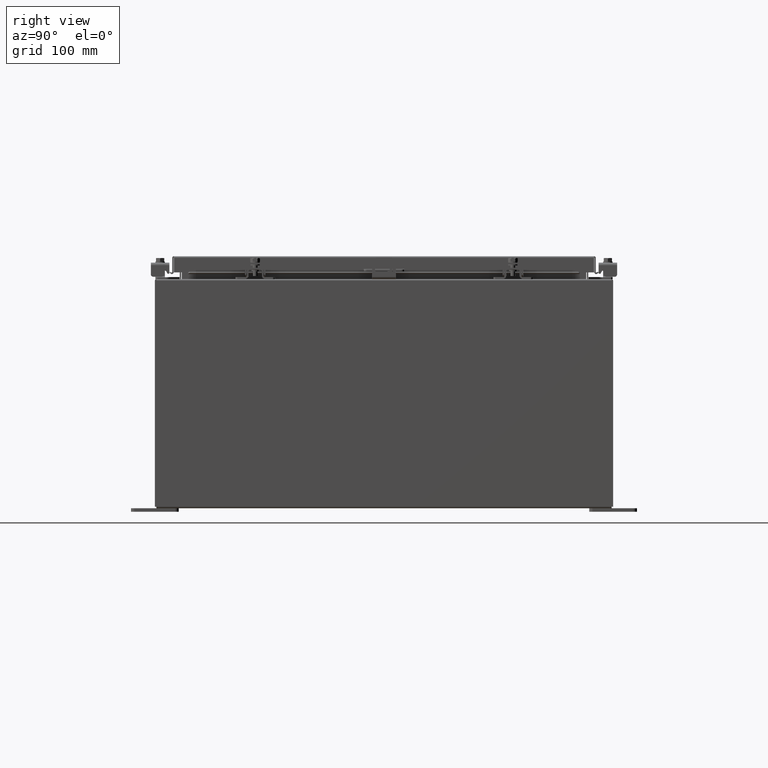
[diagram: clean part render]
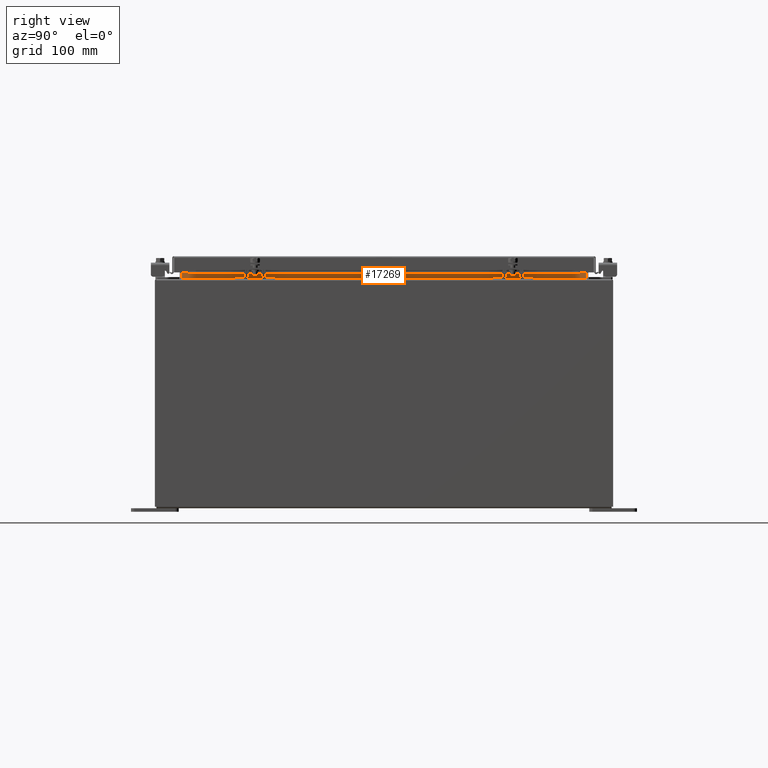
[diagram: same view with one face highlighted and labeled with its STEP entity id]
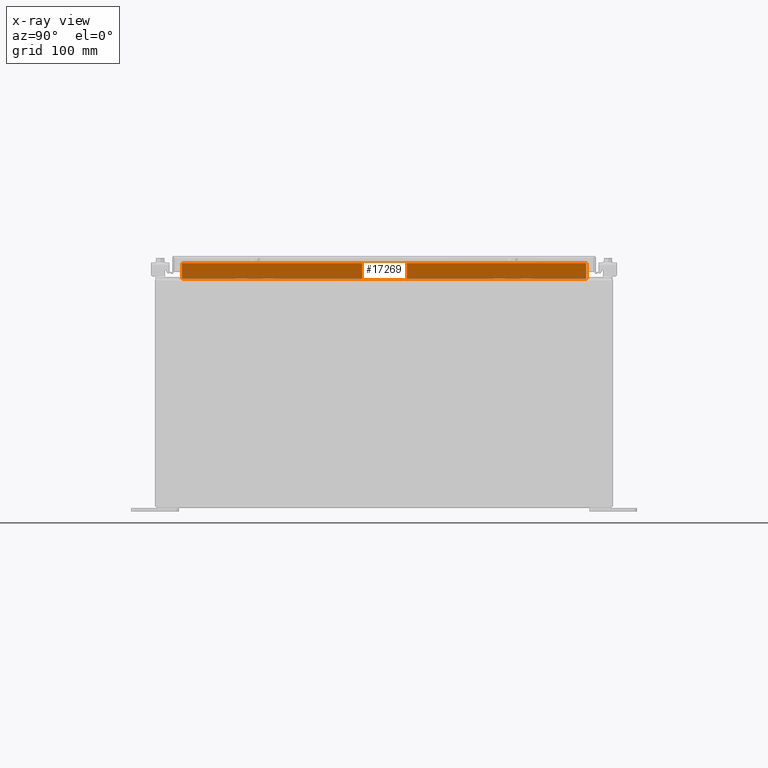
[diagram: x-ray of the same camera — body ghosted, the highlighted face saturated]
A machine part, right view. The second image highlights one B-rep face of the part: STEP entity #17269.
The next image is the same camera in x-ray: the body ghosted, the highlighted face saturated — about 0% of this face is hidden behind the body in this view.
In plain terms, the highlighted planar face has unit normal (1, 0, -0).
Its self-contained STEP definition (entity closure, byte-faithful):
#2530 = LINE ( 'NONE', #11631, #20116 ) ;
#3566 = VERTEX_POINT ( 'NONE', #9906 ) ;
#3612 = DIRECTION ( 'NONE',  ( 4.723826639860397600E-015, -0.0000000000000000000, 1.000000000000000000 ) ) ;
#4254 = DIRECTION ( 'NONE',  ( -4.723826639860386500E-015, -0.0000000000000000000, -1.000000000000000000 ) ) ;
#4848 = EDGE_CURVE ( 'NONE', #14037, #24499, #2530, .T. ) ;
#6493 = VECTOR ( 'NONE', #4254, 39.37007874015748100 ) ;
#6788 = CARTESIAN_POINT ( 'NONE',  ( 10.69970000000004100, 10.59374999999999600, 11.92530000000000900 ) ) ;
#7716 = ORIENTED_EDGE ( 'NONE', *, *, #4848, .F. ) ;
#8126 = ORIENTED_EDGE ( 'NONE', *, *, #13649, .F. ) ;
#8684 = CARTESIAN_POINT ( 'NONE',  ( 10.69970000000004100, -10.59375000000000200, 11.93830000000001200 ) ) ;
#9478 = CARTESIAN_POINT ( 'NONE',  ( 10.69970000000004800, -10.59375000000000000, 12.76290000000001100 ) ) ;
#9518 = LINE ( 'NONE', #16064, #21977 ) ;
#9906 = CARTESIAN_POINT ( 'NONE',  ( 10.69970000000004800, 10.59374999999999600, 12.76290000000001100 ) ) ;
#11631 = CARTESIAN_POINT ( 'NONE',  ( 10.69970000000004100, 10.59374999999999600, 11.93830000000000900 ) ) ;
#13437 = AXIS2_PLACEMENT_3D ( 'NONE', #17582, #30198, #15214 ) ;
#13649 = EDGE_CURVE ( 'NONE', #24499, #17863, #9518, .T. ) ;
#14037 = VERTEX_POINT ( 'NONE', #17443 ) ;
#14501 = DIRECTION ( 'NONE',  ( 0.0000000000000000000, 1.000000000000000000, 0.0000000000000000000 ) ) ;
#15214 = DIRECTION ( 'NONE',  ( -4.723826639860386500E-015, 0.0000000000000000000, -1.000000000000000000 ) ) ;
#15883 = EDGE_LOOP ( 'NONE', ( #20934, #19982, #8126, #7716 ) ) ;
#16064 = CARTESIAN_POINT ( 'NONE',  ( 10.69970000000004600, -10.59375000000000200, 12.85060000000001100 ) ) ;
#16644 = EDGE_CURVE ( 'NONE', #17863, #3566, #29642, .T. ) ;
#17086 = VECTOR ( 'NONE', #14501, 39.37007874015748100 ) ;
#17269 = ADVANCED_FACE ( 'NONE', ( #26910 ), #22620, .T. ) ;
#17443 = CARTESIAN_POINT ( 'NONE',  ( 10.69970000000004100, 10.59374999999998400, 11.93830000000001200 ) ) ;
#17582 = CARTESIAN_POINT ( 'NONE',  ( 10.69969999999998400, 0.0000000000000000000, -5.054352789851410500E-014 ) ) ;
#17668 = DIRECTION ( 'NONE',  ( 1.031494227696241200E-016, -1.000000000000000000, 2.062988455392482400E-016 ) ) ;
#17863 = VERTEX_POINT ( 'NONE', #27837 ) ;
#19744 = LINE ( 'NONE', #6788, #6493 ) ;
#19982 = ORIENTED_EDGE ( 'NONE', *, *, #16644, .F. ) ;
#20116 = VECTOR ( 'NONE', #17668, 39.37007874015748100 ) ;
#20934 = ORIENTED_EDGE ( 'NONE', *, *, #26859, .F. ) ;
#21977 = VECTOR ( 'NONE', #3612, 39.37007874015748100 ) ;
#22620 = PLANE ( 'NONE',  #13437 ) ;
#24499 = VERTEX_POINT ( 'NONE', #8684 ) ;
#26859 = EDGE_CURVE ( 'NONE', #3566, #14037, #19744, .T. ) ;
#26910 = FACE_OUTER_BOUND ( 'NONE', #15883, .T. ) ;
#27837 = CARTESIAN_POINT ( 'NONE',  ( 10.69970000000004600, -10.59375000000000200, 12.76290000000001100 ) ) ;
#29642 = LINE ( 'NONE', #9478, #17086 ) ;
#30198 = DIRECTION ( 'NONE',  ( 1.000000000000000000, 0.0000000000000000000, -4.723826639860386500E-015 ) ) ;